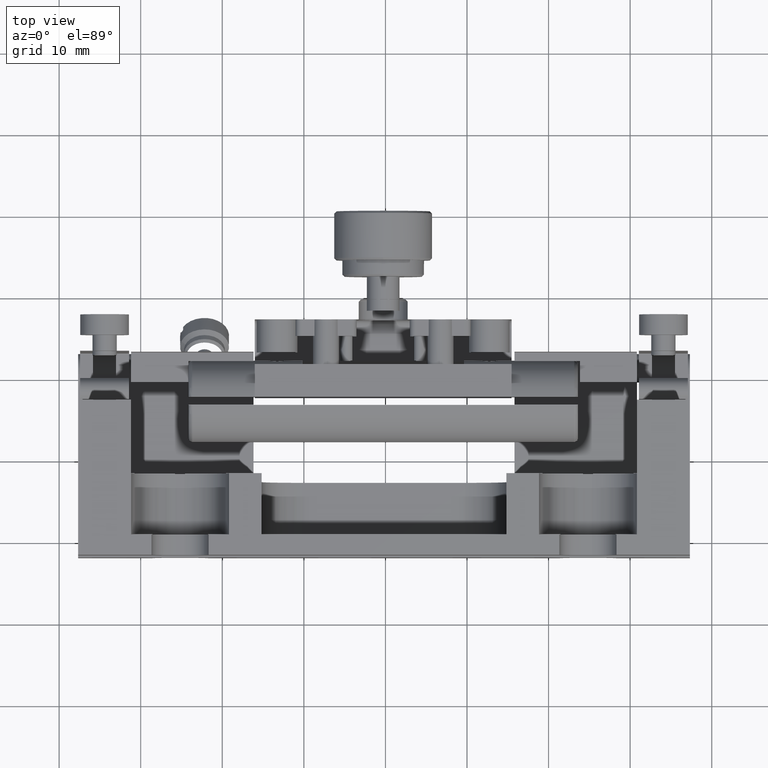
[diagram: clean part render]
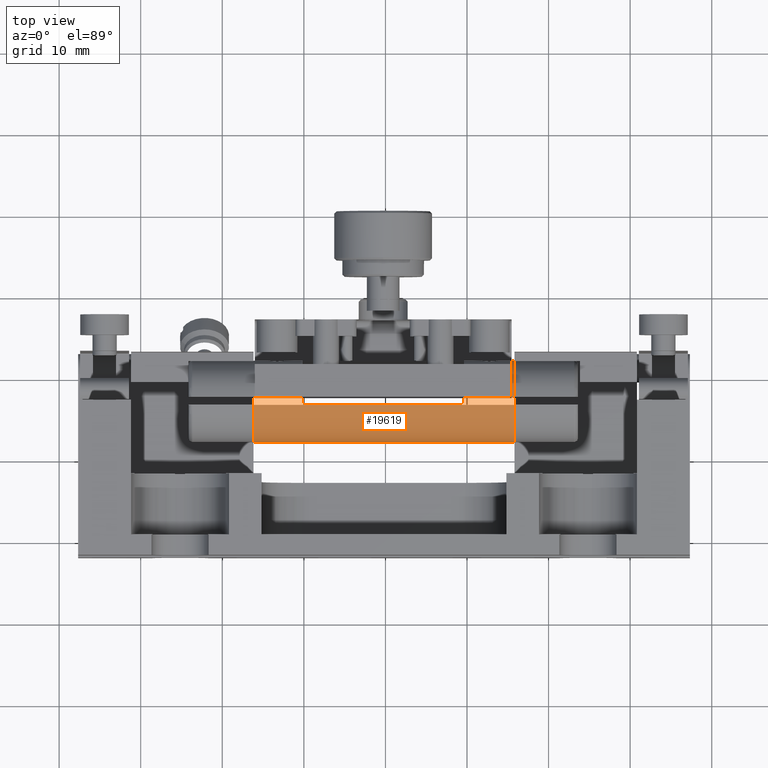
[diagram: same view with one face highlighted and labeled with its STEP entity id]
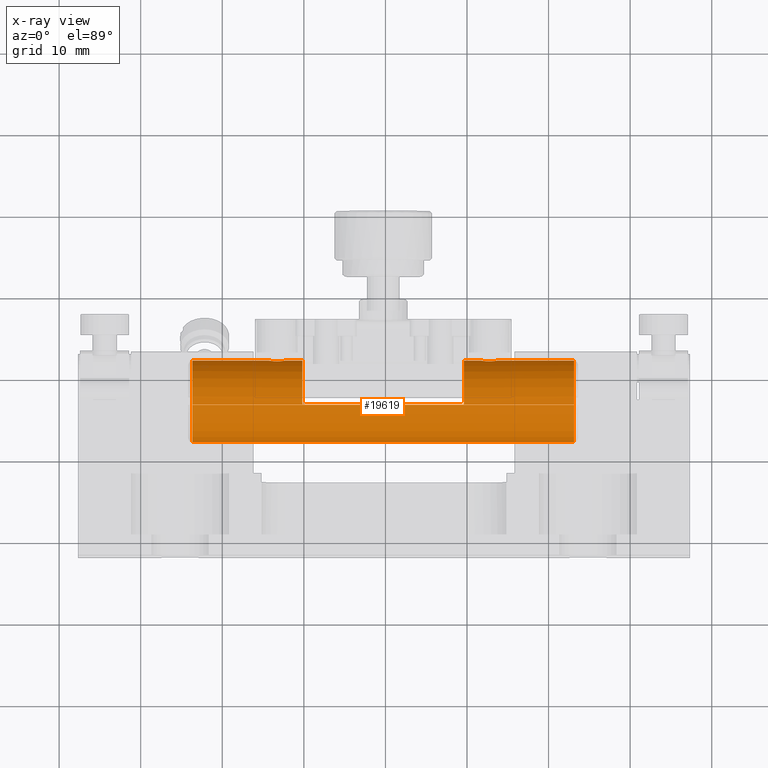
[diagram: x-ray of the same camera — body ghosted, the highlighted face saturated]
A machine part, top view. The second image highlights one B-rep face of the part: STEP entity #19619.
The next image is the same camera in x-ray: the body ghosted, the highlighted face saturated — about 0% of this face is hidden behind the body in this view.
In plain terms, the highlighted cylindrical surface (partial cylindrical patch) has radius 5 mm, axis along (-1, -0, -0).
Its self-contained STEP definition (entity closure, byte-faithful):
#122 = CIRCLE ( 'NONE', #16769, 5.000000000000004441 ) ;
#190 = CARTESIAN_POINT ( 'NONE',  ( 6.457621257104865009, 52.07303520085700654, 66.93100702931087653 ) ) ;
#287 = CARTESIAN_POINT ( 'NONE',  ( 7.751345966282477740, 52.17343476192759510, 65.93264947075047644 ) ) ;
#731 = CARTESIAN_POINT ( 'NONE',  ( 32.20768551457344131, 52.09307438481480546, 66.82704773596010739 ) ) ;
#928 = CARTESIAN_POINT ( 'NONE',  ( 31.90528082368087581, 52.13473887362074777, 66.56102194818002715 ) ) ;
#1006 = CARTESIAN_POINT ( 'NONE',  ( 43.12634596628247863, 47.17343476192759510, 65.93264947075047644 ) ) ;
#1103 = CARTESIAN_POINT ( 'NONE',  ( 5.701345966275951582, 52.17343476192759510, 65.93264947074973747 ) ) ;
#1176 = CARTESIAN_POINT ( 'NONE',  ( 29.58285504582916303, 46.86422640133109496, 60.94167228197211017 ) ) ;
#1197 = DIRECTION ( 'NONE',  ( 1.000000000000000000, 3.275945253641315028E-25, 1.491407550785738437E-24 ) ) ;
#1297 = CARTESIAN_POINT ( 'NONE',  ( 7.244164856301301469, 52.09298482366249772, 65.03776600585355538 ) ) ;
#1345 = CARTESIAN_POINT ( 'NONE',  ( 7.751345966282477740, 52.17343476192759510, 65.93264947075047644 ) ) ;
#1697 = B_SPLINE_CURVE_WITH_KNOTS ( 'NONE', 3,
 ( #287, #4995, #6529, #1916, #9484, #6629, #8163, #4577, #7957, #14187, #190, #17051, #6431, #3041, #12656, #9283, #2012, #14594 ),
 .UNSPECIFIED., .F., .F.,
 ( 4, 2, 2, 2, 2, 2, 2, 2, 4 ),
 ( 0.000000000000000000, 0.1250000000000000000, 0.2500000000000000000, 0.3750000000000000000, 0.5000000000000000000, 0.6250000000000000000, 0.7500000000000000000, 0.8750000000000000000, 1.000000000000000000 ),
 .UNSPECIFIED. ) ;
#1916 = CARTESIAN_POINT ( 'NONE',  ( 7.621020712101277184, 52.14809035606124610, 66.45091120637080451 ) ) ;
#1996 = EDGE_CURVE ( 'NONE', #5735, #20086, #5507, .T. ) ;
#2012 = CARTESIAN_POINT ( 'NONE',  ( 5.701345966275950694, 52.17343476192762353, 66.06857111799877202 ) ) ;
#2082 = AXIS2_PLACEMENT_3D ( 'NONE', #1006, #4185, #12051 ) ;
#2158 = CARTESIAN_POINT ( 'NONE',  ( 32.99353187711184177, 52.07291961509089617, 66.93159683054923903 ) ) ;
#2261 = CARTESIAN_POINT ( 'NONE',  ( 32.58984244876729264, 52.06724775024211027, 66.95763456119304635 ) ) ;
#2378 = VECTOR ( 'NONE', #19308, 1000.000000000000000 ) ;
#2435 = CARTESIAN_POINT ( 'NONE',  ( 7.725215707727717707, 52.16787865311439987, 65.66533151085216957 ) ) ;
#2710 = CARTESIAN_POINT ( 'NONE',  ( 29.22634596628248715, 46.67343476192760221, 60.95771228521737584 ) ) ;
#2794 = VERTEX_POINT ( 'NONE', #7991 ) ;
#3041 = CARTESIAN_POINT ( 'NONE',  ( 5.905280823680867819, 52.13473887362074777, 66.56102194818002715 ) ) ;
#3238 = ORIENTED_EDGE ( 'NONE', *, *, #1996, .T. ) ;
#3345 = CIRCLE ( 'NONE', #3680, 5.000000000000004441 ) ;
#3418 = EDGE_CURVE ( 'NONE', #6035, #6282, #5763, .T. ) ;
#3588 = CARTESIAN_POINT ( 'NONE',  ( 33.54722803746055604, 52.13470536895236762, 66.56131743186591621 ) ) ;
#3652 = VECTOR ( 'NONE', #18327, 1000.000000000000000 ) ;
#3680 = AXIS2_PLACEMENT_3D ( 'NONE', #18469, #1197, #4274 ) ;
#3802 = CARTESIAN_POINT ( 'NONE',  ( 33.72502071465991236, 52.16784493682884971, 66.20034428142037086 ) ) ;
#4077 = CARTESIAN_POINT ( 'NONE',  ( 6.208244434189175820, 52.09299951938055528, 65.03783232954997118 ) ) ;
#4185 = DIRECTION ( 'NONE',  ( -1.000000000000000000, -3.275945253641315028E-25, -1.491407550785738437E-24 ) ) ;
#4274 = DIRECTION ( 'NONE',  ( 0.000000000000000000, 0.000000000000000000, 1.000000000000000000 ) ) ;
#4278 = CARTESIAN_POINT ( 'NONE',  ( 7.751345966282477740, 52.17343476192759510, 65.93264947075047644 ) ) ;
#4346 = CARTESIAN_POINT ( 'NONE',  ( 31.70134596627594803, 52.17343476192759510, 65.93264947074973747 ) ) ;
#4505 = VERTEX_POINT ( 'NONE', #13372 ) ;
#4513 = EDGE_CURVE ( 'NONE', #14302, #17027, #15310, .T. ) ;
#4577 = CARTESIAN_POINT ( 'NONE',  ( 6.993531877111841766, 52.07291961509089617, 66.93159683054923903 ) ) ;
#4586 = DIRECTION ( 'NONE',  ( 0.000000000000000000, 0.000000000000000000, 1.000000000000000000 ) ) ;
#4714 = FACE_BOUND ( 'NONE', #11942, .T. ) ;
#4780 = ORIENTED_EDGE ( 'NONE', *, *, #15840, .T. ) ;
#4995 = CARTESIAN_POINT ( 'NONE',  ( 7.751345966282478628, 52.17343476192760221, 66.06870920655993018 ) ) ;
#5161 = EDGE_CURVE ( 'NONE', #19673, #14444, #5716, .T. ) ;
#5237 = DIRECTION ( 'NONE',  ( -1.000000000000000000, -3.275945253641315028E-25, -1.491407550785738437E-24 ) ) ;
#5275 = CARTESIAN_POINT ( 'NONE',  ( 33.35503537752984471, 52.10655089125148720, 65.11182464508077317 ) ) ;
#5286 = CARTESIAN_POINT ( 'NONE',  ( 43.12634596628248573, 46.67343476192760221, 70.90758665628358415 ) ) ;
#5437 = CARTESIAN_POINT ( 'NONE',  ( 32.09678378935155507, 52.10666548620193339, 66.75278670327311659 ) ) ;
#5483 = VERTEX_POINT ( 'NONE', #5286 ) ;
#5507 = CIRCLE ( 'NONE', #10392, 5.000000000000004441 ) ;
#5626 = CARTESIAN_POINT ( 'NONE',  ( 31.70134596627595513, 52.17343476192758089, 65.79662767052407446 ) ) ;
#5716 = LINE ( 'NONE', #11534, #12203 ) ;
#5735 = VERTEX_POINT ( 'NONE', #6295 ) ;
#5763 = LINE ( 'NONE', #11995, #3652 ) ;
#5813 = CARTESIAN_POINT ( 'NONE',  ( 7.546881715866083695, 52.13464799678061468, 65.30356173588893398 ) ) ;
#6035 = VERTEX_POINT ( 'NONE', #14434 ) ;
#6223 = DIRECTION ( 'NONE',  ( 1.000000000000000000, 3.275945253641315028E-25, 1.491407550785738437E-24 ) ) ;
#6282 = VERTEX_POINT ( 'NONE', #13292 ) ;
#6295 = CARTESIAN_POINT ( 'NONE',  ( -3.673654033717501211, 46.67343476192759510, 70.90758665628358415 ) ) ;
#6431 = CARTESIAN_POINT ( 'NONE',  ( 6.096783789351571059, 52.10666548620193339, 66.75278670327311659 ) ) ;
#6494 = ORIENTED_EDGE ( 'NONE', *, *, #9776, .T. ) ;
#6511 = CARTESIAN_POINT ( 'NONE',  ( 32.86224353498752038, 52.06723596289510425, 64.90760810222049315 ) ) ;
#6529 = CARTESIAN_POINT ( 'NONE',  ( 7.725020714765852503, 52.16784493684041735, 66.20034428127368642 ) ) ;
#6629 = CARTESIAN_POINT ( 'NONE',  ( 7.355106198797052741, 52.10655462671918059, 66.75347700505055570 ) ) ;
#6745 = CARTESIAN_POINT ( 'NONE',  ( 9.826345966282486799, 47.07343476192759368, 60.93364957077048416 ) ) ;
#6850 = CARTESIAN_POINT ( 'NONE',  ( 29.62634596628248218, 46.67343476192759510, 70.90758665628359836 ) ) ;
#6967 = CARTESIAN_POINT ( 'NONE',  ( 33.24572268334270575, 52.09312404753953274, 66.82679989828532996 ) ) ;
#7061 = CARTESIAN_POINT ( 'NONE',  ( 33.75134596628247152, 52.17343476192759510, 65.93264947075047644 ) ) ;
#7289 = ORIENTED_EDGE ( 'NONE', *, *, #3418, .T. ) ;
#7424 = CARTESIAN_POINT ( 'NONE',  ( 29.33208282851185089, 46.67343476192760932, 60.95771228521737584 ) ) ;
#7444 = CARTESIAN_POINT ( 'NONE',  ( 5.905663065718006699, 52.13466937642366617, 65.30368745582531176 ) ) ;
#7540 = CARTESIAN_POINT ( 'NONE',  ( 6.994163400572050548, 52.07298468105006606, 64.93405054440974311 ) ) ;
#7545 = LINE ( 'NONE', #9080, #9913 ) ;
#7784 = FACE_OUTER_BOUND ( 'NONE', #17070, .T. ) ;
#7869 = DIRECTION ( 'NONE',  ( 1.000000000000000000, 3.275945253641315028E-25, 1.491407550785738437E-24 ) ) ;
#7886 = CARTESIAN_POINT ( 'NONE',  ( 43.62634596628247863, 47.17343476192759510, 65.93264947075047644 ) ) ;
#7957 = CARTESIAN_POINT ( 'NONE',  ( 6.861527078491174159, 52.06724159401659335, 66.95766395378205971 ) ) ;
#7991 = CARTESIAN_POINT ( 'NONE',  ( 5.701345966275951582, 52.17343476192759510, 65.93264947074973747 ) ) ;
#8163 = CARTESIAN_POINT ( 'NONE',  ( 7.245722683342695980, 52.09312404753953274, 66.82679989828532996 ) ) ;
#8245 = CARTESIAN_POINT ( 'NONE',  ( 10.12060776534221951, 46.67343476192759510, 60.95771228521739005 ) ) ;
#8290 = CARTESIAN_POINT ( 'NONE',  ( 10.22634596628248893, 46.67343476192759510, 60.95771228521738294 ) ) ;
#8297 = CIRCLE ( 'NONE', #2082, 5.000000000000004441 ) ;
#8328 = ORIENTED_EDGE ( 'NONE', *, *, #10844, .T. ) ;
#8506 = DIRECTION ( 'NONE',  ( 0.000000000000000000, 0.000000000000000000, 1.000000000000000000 ) ) ;
#8708 = CARTESIAN_POINT ( 'NONE',  ( 31.70134596627594803, 52.17343476192759510, 65.93264947074973747 ) ) ;
#8903 = ORIENTED_EDGE ( 'NONE', *, *, #16247, .T. ) ;
#9080 = CARTESIAN_POINT ( 'NONE',  ( 43.62634596628247863, 47.67343476192759510, 70.90758665628358415 ) ) ;
#9283 = CARTESIAN_POINT ( 'NONE',  ( 5.727390804510772426, 52.16789744993302236, 66.19953002204596260 ) ) ;
#9316 = B_SPLINE_CURVE_WITH_KNOTS ( 'NONE', 3,
 ( #17801, #9932, #3802, #16164, #3588, #14738, #6967, #2158, #10032, #2261, #17902, #731, #5437, #928, #15238, #15037, #11969, #8708 ),
 .UNSPECIFIED., .F., .F.,
 ( 4, 2, 2, 2, 2, 2, 2, 2, 4 ),
 ( 0.000000000000000000, 0.1250000000000000000, 0.2500000000000000000, 0.3750000000000000000, 0.5000000000000000000, 0.6250000000000000000, 0.7500000000000000000, 0.8750000000000000000, 1.000000000000000000 ),
 .UNSPECIFIED. ) ;
#9413 = CYLINDRICAL_SURFACE ( 'NONE', #18571, 5.000000000000004441 ) ;
#9472 = ORIENTED_EDGE ( 'NONE', *, *, #12946, .T. ) ;
#9484 = CARTESIAN_POINT ( 'NONE',  ( 7.547228037528729061, 52.13470536895655272, 66.56131743183733818 ) ) ;
#9665 = CARTESIAN_POINT ( 'NONE',  ( 32.20824443417946270, 52.09299951938056239, 65.03783232954998539 ) ) ;
#9670 = CARTESIAN_POINT ( 'NONE',  ( 9.826345966282486799, 47.07343476192759368, 60.93364957077048416 ) ) ;
#9770 = CARTESIAN_POINT ( 'NONE',  ( 9.826345966282492128, 46.96771929564050652, 60.93576430308498004 ) ) ;
#9776 = EDGE_CURVE ( 'NONE', #4505, #6035, #3345, .T. ) ;
#9913 = VECTOR ( 'NONE', #6223, 1000.000000000000000 ) ;
#9932 = CARTESIAN_POINT ( 'NONE',  ( 33.75134596628247152, 52.17343476192758800, 66.06870920645053502 ) ) ;
#10004 = ORIENTED_EDGE ( 'NONE', *, *, #17588, .T. ) ;
#10032 = CARTESIAN_POINT ( 'NONE',  ( 32.86152707849116439, 52.06724159401659335, 66.95766395378205971 ) ) ;
#10307 = CARTESIAN_POINT ( 'NONE',  ( 7.620694673508677575, 52.14803175210897734, 65.41369527318032340 ) ) ;
#10323 = CARTESIAN_POINT ( 'NONE',  ( 31.90566306574265454, 52.13466937642274956, 65.30368745581901635 ) ) ;
#10392 = AXIS2_PLACEMENT_3D ( 'NONE', #17265, #7869, #4586 ) ;
#10844 = EDGE_CURVE ( 'NONE', #5483, #5735, #19112, .T. ) ;
#10932 = EDGE_CURVE ( 'NONE', #2794, #14797, #16663, .T. ) ;
#11196 = CARTESIAN_POINT ( 'NONE',  ( 33.72521570772770616, 52.16787865311465566, 65.66533151085540965 ) ) ;
#11222 = CARTESIAN_POINT ( 'NONE',  ( -3.673654033717511425, 47.67343476192759510, 70.90758665628358415 ) ) ;
#11301 = CARTESIAN_POINT ( 'NONE',  ( 33.75134596628247152, 52.17343476192759510, 65.93264947075047644 ) ) ;
#11397 = CARTESIAN_POINT ( 'NONE',  ( 33.54688171586138878, 52.13464799677851857, 65.30356173587452417 ) ) ;
#11534 = CARTESIAN_POINT ( 'NONE',  ( 43.62634596628247863, 46.67343476192759510, 60.95771228521738294 ) ) ;
#11735 = CARTESIAN_POINT ( 'NONE',  ( 5.727561008866981496, 52.16786630749689380, 65.66525811780910260 ) ) ;
#11834 = CARTESIAN_POINT ( 'NONE',  ( 7.751345966282478628, 52.17343476192760932, 65.79649679659948447 ) ) ;
#11851 = CARTESIAN_POINT ( 'NONE',  ( 31.72756100884695840, 52.16786630749702880, 65.66525811781079369 ) ) ;
#11941 = CARTESIAN_POINT ( 'NONE',  ( 6.459647872046250683, 52.07290307568318610, 64.93363727789973439 ) ) ;
#11942 = EDGE_LOOP ( 'NONE', ( #9472, #18499 ) ) ;
#11969 = CARTESIAN_POINT ( 'NONE',  ( 31.70134596627594803, 52.17343476192762353, 66.06857111799877202 ) ) ;
#11995 = CARTESIAN_POINT ( 'NONE',  ( 43.62634596628247863, 47.67343476192759510, 70.90758665628358415 ) ) ;
#12051 = DIRECTION ( 'NONE',  ( 0.000000000000000000, 0.000000000000000000, 1.000000000000000000 ) ) ;
#12203 = VECTOR ( 'NONE', #17777, 1000.000000000000000 ) ;
#12371 = FACE_BOUND ( 'NONE', #20213, .T. ) ;
#12656 = CARTESIAN_POINT ( 'NONE',  ( 5.831570157450052250, 52.14811030092182165, 66.45080586825099545 ) ) ;
#12730 = CARTESIAN_POINT ( 'NONE',  ( 32.45964787205596025, 52.07290307568318610, 64.93363727789973439 ) ) ;
#12735 = CARTESIAN_POINT ( 'NONE',  ( 10.22634596628248893, 46.67343476192759510, 60.95771228521738294 ) ) ;
#12825 = ORIENTED_EDGE ( 'NONE', *, *, #5161, .T. ) ;
#12946 = EDGE_CURVE ( 'NONE', #14797, #2794, #1697, .T. ) ;
#13034 = CARTESIAN_POINT ( 'NONE',  ( 33.24416485627757112, 52.09298482365981897, 65.03776600583967138 ) ) ;
#13039 = CARTESIAN_POINT ( 'NONE',  ( 10.01705237622567957, 46.71697353201327019, 60.95297934830065145 ) ) ;
#13292 = CARTESIAN_POINT ( 'NONE',  ( 43.12634596628247863, 47.67343476192759510, 70.90758665628358415 ) ) ;
#13372 = CARTESIAN_POINT ( 'NONE',  ( 29.62634596628248218, 47.07343476192760079, 60.93364957077048416 ) ) ;
#13436 = B_SPLINE_CURVE_WITH_KNOTS ( 'NONE', 3,
 ( #9670, #9770, #17636, #13039, #8245, #12735 ),
 .UNSPECIFIED., .F., .F.,
 ( 4, 2, 4 ),
 ( 0.000000000000000000, 0.0003126936714226595049, 0.0006253873428453190098 ),
 .UNSPECIFIED. ) ;
#13540 = CARTESIAN_POINT ( 'NONE',  ( 29.43539940025051393, 46.71683481284058104, 60.95299289668209752 ) ) ;
#13663 = CARTESIAN_POINT ( 'NONE',  ( 6.098102019406678842, 52.10648582196272827, 65.11140081450864159 ) ) ;
#14187 = CARTESIAN_POINT ( 'NONE',  ( 6.589842448767304184, 52.06724775024211027, 66.95763456119304635 ) ) ;
#14302 = VERTEX_POINT ( 'NONE', #4346 ) ;
#14368 = CARTESIAN_POINT ( 'NONE',  ( 33.62069467350867313, 52.14803175210872155, 65.41369527317708332 ) ) ;
#14434 = CARTESIAN_POINT ( 'NONE',  ( 29.62634596628248218, 47.67343476192759510, 70.90758665628358415 ) ) ;
#14444 = VERTEX_POINT ( 'NONE', #18445 ) ;
#14541 = ORIENTED_EDGE ( 'NONE', *, *, #16721, .T. ) ;
#14594 = CARTESIAN_POINT ( 'NONE',  ( 5.701345966275951582, 52.17343476192759510, 65.93264947074973747 ) ) ;
#14738 = CARTESIAN_POINT ( 'NONE',  ( 33.35510619886523642, 52.10655462672336569, 66.75347700502200610 ) ) ;
#14797 = VERTEX_POINT ( 'NONE', #1345 ) ;
#14809 = CARTESIAN_POINT ( 'NONE',  ( 9.826345966282485023, 47.67343476192759510, 70.90758665628358415 ) ) ;
#15037 = CARTESIAN_POINT ( 'NONE',  ( 31.72739080451076532, 52.16789744993302236, 66.19953002204596260 ) ) ;
#15039 = ORIENTED_EDGE ( 'NONE', *, *, #15824, .T. ) ;
#15155 = VERTEX_POINT ( 'NONE', #6745 ) ;
#15187 = CARTESIAN_POINT ( 'NONE',  ( 29.62634596628248929, 46.96772240344216698, 60.93576424091653365 ) ) ;
#15209 = CARTESIAN_POINT ( 'NONE',  ( 7.355035377525169338, 52.10655089124937689, 65.11182464506637757 ) ) ;
#15238 = CARTESIAN_POINT ( 'NONE',  ( 31.83157015745004870, 52.14811030092182165, 66.45080586825099545 ) ) ;
#15262 = VERTEX_POINT ( 'NONE', #14809 ) ;
#15307 = CARTESIAN_POINT ( 'NONE',  ( 6.590914282421093340, 52.06725330311645195, 64.90769089221917909 ) ) ;
#15310 = B_SPLINE_CURVE_WITH_KNOTS ( 'NONE', 3,
 ( #19623, #5626, #11851, #18095, #10323, #16561, #9665, #12730, #15803, #6511, #15705, #13034, #5275, #11397, #14368, #11196, #19078, #11301 ),
 .UNSPECIFIED., .F., .F.,
 ( 4, 2, 2, 2, 2, 2, 2, 2, 4 ),
 ( 0.000000000000000000, 0.1250000000000000000, 0.2500000000000000000, 0.3750000000000000000, 0.5000000000000000000, 0.6250000000000000000, 0.7500000000000000000, 0.8750000000000000000, 1.000000000000000000 ),
 .UNSPECIFIED. ) ;
#15654 = DIRECTION ( 'NONE',  ( -1.000000000000000000, -3.275945253641315028E-25, -1.491407550785738437E-24 ) ) ;
#15705 = CARTESIAN_POINT ( 'NONE',  ( 32.99416340059580932, 52.07298468105273059, 64.93405054442362712 ) ) ;
#15803 = CARTESIAN_POINT ( 'NONE',  ( 32.59091428243085886, 52.06725330311645905, 64.90769089221916488 ) ) ;
#15824 = EDGE_CURVE ( 'NONE', #15262, #15155, #122, .T. ) ;
#15840 = EDGE_CURVE ( 'NONE', #17027, #14302, #9316, .T. ) ;
#16164 = CARTESIAN_POINT ( 'NONE',  ( 33.62102071220726884, 52.14809035607282084, 66.45091120622419112 ) ) ;
#16247 = EDGE_CURVE ( 'NONE', #6282, #5483, #8297, .T. ) ;
#16348 = EDGE_CURVE ( 'NONE', #20086, #15262, #7545, .T. ) ;
#16561 = CARTESIAN_POINT ( 'NONE',  ( 32.09810201938201857, 52.10648582196364487, 65.11140081451489436 ) ) ;
#16663 = B_SPLINE_CURVE_WITH_KNOTS ( 'NONE', 3,
 ( #1103, #17977, #11735, #19711, #7444, #13663, #4077, #11941, #15307, #19911, #7540, #1297, #15209, #5813, #10307, #2435, #11834, #4278 ),
 .UNSPECIFIED., .F., .F.,
 ( 4, 2, 2, 2, 2, 2, 2, 2, 4 ),
 ( 0.000000000000000000, 0.1250000000000000000, 0.2500000000000000000, 0.3750000000000000000, 0.5000000000000000000, 0.6250000000000000000, 0.7500000000000000000, 0.8750000000000000000, 1.000000000000000000 ),
 .UNSPECIFIED. ) ;
#16721 = EDGE_CURVE ( 'NONE', #15155, #19673, #13436, .T. ) ;
#16769 = AXIS2_PLACEMENT_3D ( 'NONE', #19237, #5237, #8506 ) ;
#16853 = ORIENTED_EDGE ( 'NONE', *, *, #16348, .T. ) ;
#17027 = VERTEX_POINT ( 'NONE', #7061 ) ;
#17051 = CARTESIAN_POINT ( 'NONE',  ( 6.207685514573453744, 52.09307438481480546, 66.82704773596010739 ) ) ;
#17070 = EDGE_LOOP ( 'NONE', ( #7289, #8903, #8328, #3238, #16853, #15039, #14541, #12825, #10004, #6494 ) ) ;
#17265 = CARTESIAN_POINT ( 'NONE',  ( -3.673654033717513201, 47.17343476192759510, 65.93264947075047644 ) ) ;
#17588 = EDGE_CURVE ( 'NONE', #14444, #4505, #19746, .T. ) ;
#17636 = CARTESIAN_POINT ( 'NONE',  ( 9.869687693752334567, 46.86447713008156768, 60.94165592591811276 ) ) ;
#17777 = DIRECTION ( 'NONE',  ( 1.000000000000000000, 3.275945253641315028E-25, 1.491407550785738437E-24 ) ) ;
#17801 = CARTESIAN_POINT ( 'NONE',  ( 33.75134596628247152, 52.17343476192759510, 65.93264947075047644 ) ) ;
#17902 = CARTESIAN_POINT ( 'NONE',  ( 32.45762125710488277, 52.07303520085700654, 66.93100702931087653 ) ) ;
#17909 = ORIENTED_EDGE ( 'NONE', *, *, #4513, .T. ) ;
#17951 = CARTESIAN_POINT ( 'NONE',  ( 29.62634596628248218, 47.07343476192760079, 60.93364957077048416 ) ) ;
#17977 = CARTESIAN_POINT ( 'NONE',  ( 5.701345966275951582, 52.17343476192758089, 65.79662767057092765 ) ) ;
#18095 = CARTESIAN_POINT ( 'NONE',  ( 31.83169777603186290, 52.14808487339942644, 65.41428582673295011 ) ) ;
#18327 = DIRECTION ( 'NONE',  ( 1.000000000000000000, 3.275945253641315028E-25, 1.491407550785738437E-24 ) ) ;
#18445 = CARTESIAN_POINT ( 'NONE',  ( 29.22634596628248715, 46.67343476192760221, 60.95771228521737584 ) ) ;
#18469 = CARTESIAN_POINT ( 'NONE',  ( 29.62634596628248218, 47.17343476192759510, 65.93264947075047644 ) ) ;
#18499 = ORIENTED_EDGE ( 'NONE', *, *, #10932, .T. ) ;
#18571 = AXIS2_PLACEMENT_3D ( 'NONE', #7886, #15654, #18610 ) ;
#18610 = DIRECTION ( 'NONE',  ( 0.000000000000000000, 0.000000000000000000, 1.000000000000000000 ) ) ;
#19078 = CARTESIAN_POINT ( 'NONE',  ( 33.75134596628247152, 52.17343476192759510, 65.79649679660275297 ) ) ;
#19112 = LINE ( 'NONE', #6850, #2378 ) ;
#19237 = CARTESIAN_POINT ( 'NONE',  ( 9.826345966282485023, 47.17343476192759510, 65.93264947075047644 ) ) ;
#19308 = DIRECTION ( 'NONE',  ( -1.000000000000000000, -3.275945253641314569E-25, -0.000000000000000000 ) ) ;
#19619 = ADVANCED_FACE ( 'NONE', ( #7784, #4714, #12371 ), #9413, .T. ) ;
#19623 = CARTESIAN_POINT ( 'NONE',  ( 31.70134596627594803, 52.17343476192759510, 65.93264947074973747 ) ) ;
#19673 = VERTEX_POINT ( 'NONE', #8290 ) ;
#19711 = CARTESIAN_POINT ( 'NONE',  ( 5.831697776011834478, 52.14808487339956145, 65.41428582673459857 ) ) ;
#19746 = B_SPLINE_CURVE_WITH_KNOTS ( 'NONE', 3,
 ( #2710, #7424, #13540, #1176, #15187, #17951 ),
 .UNSPECIFIED., .F., .F.,
 ( 4, 2, 4 ),
 ( 0.000000000000000000, 0.0003126940241795427792, 0.0006253880483590855584 ),
 .UNSPECIFIED. ) ;
#19911 = CARTESIAN_POINT ( 'NONE',  ( 6.862243534997297445, 52.06723596289509004, 64.90760810222049315 ) ) ;
#20086 = VERTEX_POINT ( 'NONE', #11222 ) ;
#20213 = EDGE_LOOP ( 'NONE', ( #17909, #4780 ) ) ;